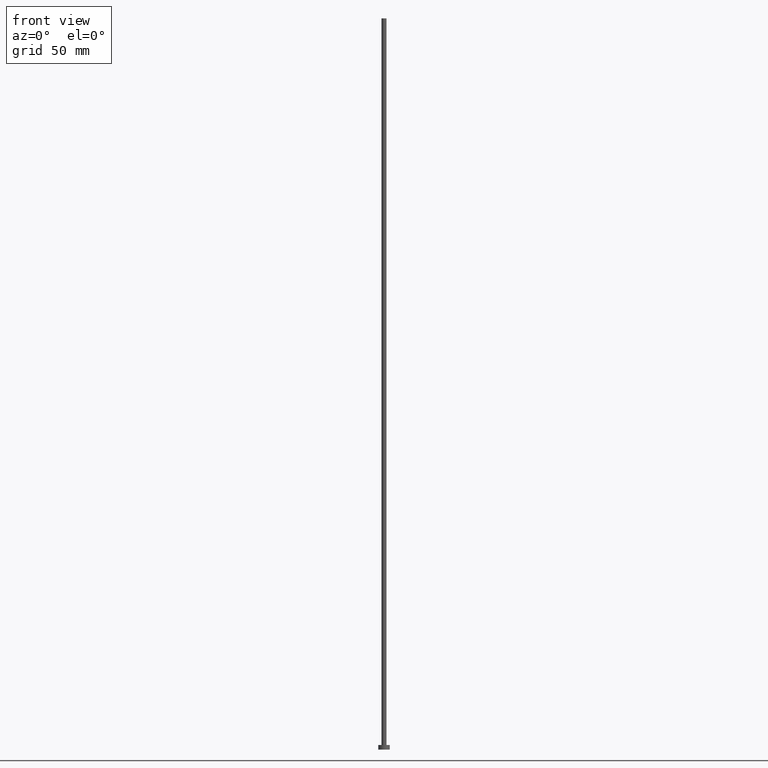
[diagram: clean part render]
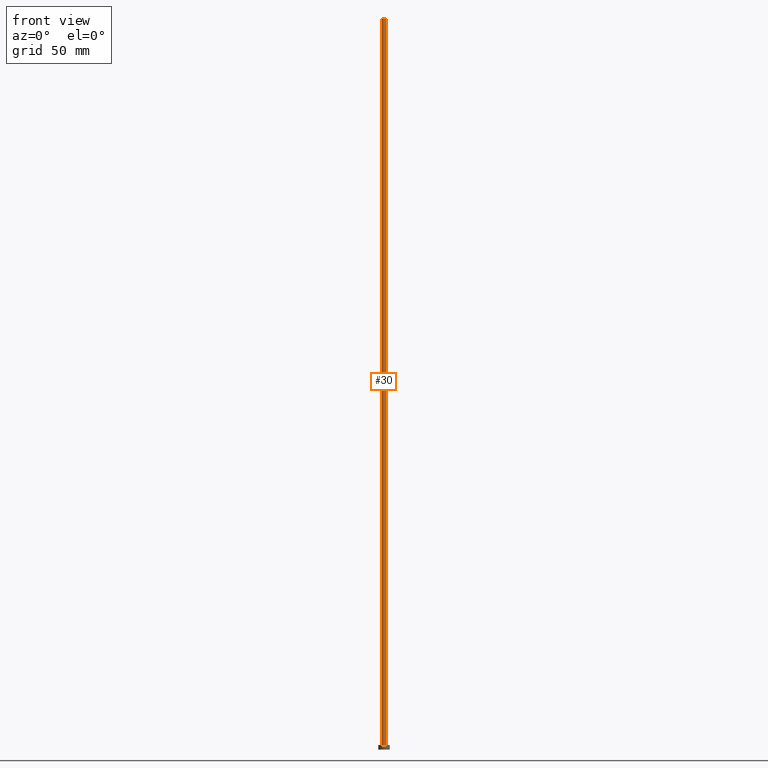
[diagram: same view with one face highlighted and labeled with its STEP entity id]
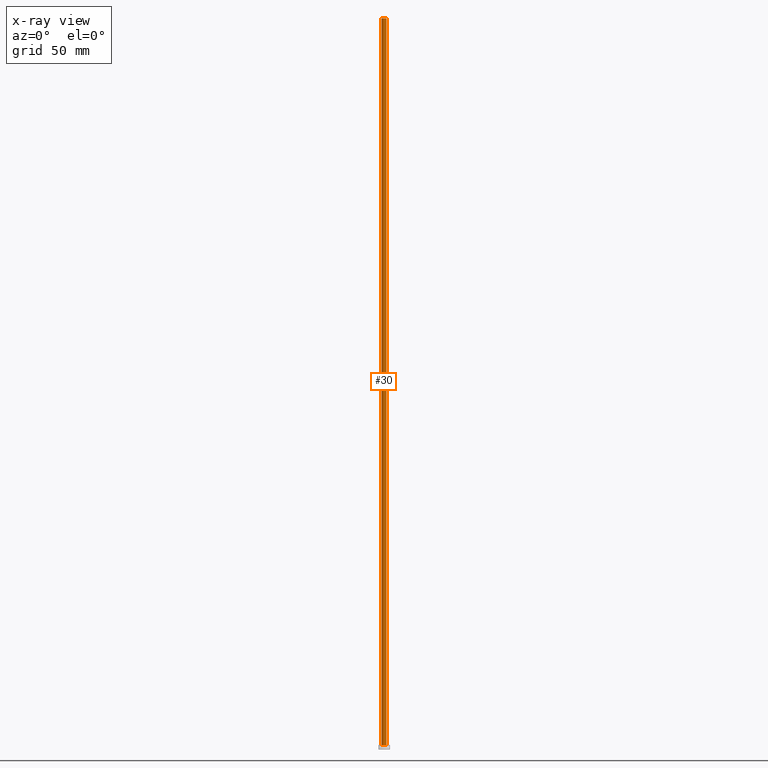
[diagram: x-ray of the same camera — body ghosted, the highlighted face saturated]
A machine part, front view. The second image highlights one B-rep face of the part: STEP entity #30.
The next image is the same camera in x-ray: the body ghosted, the highlighted face saturated — about 0% of this face is hidden behind the body in this view.
In plain terms, the highlighted cylindrical surface (edge-blend (fillet) strip) has radius 1.1 mm, axis along (-0, -0, -1).
Its self-contained STEP definition (entity closure, byte-faithful):
#8 = CARTESIAN_POINT ( 'NONE',  ( 1.100000000000000089, 1.347111479062088503E-16, 2.000000000000000000 ) ) ;
#14 = CARTESIAN_POINT ( 'NONE',  ( -1.100000000000000089, 0.000000000000000000, 2.000000000000000000 ) ) ;
#20 = CIRCLE ( 'NONE', #227, 1.100000000000000089 ) ;
#30 = ADVANCED_FACE ( 'NONE', ( #216 ), #126, .T. ) ;
#53 = EDGE_CURVE ( 'NONE', #119, #73, #78, .T. ) ;
#54 = DIRECTION ( 'NONE',  ( -1.000000000000000000, 0.000000000000000000, 0.000000000000000000 ) ) ;
#56 = DIRECTION ( 'NONE',  ( -0.000000000000000000, -0.000000000000000000, -1.000000000000000000 ) ) ;
#58 = AXIS2_PLACEMENT_3D ( 'NONE', #174, #97, #154 ) ;
#73 = VERTEX_POINT ( 'NONE', #8 ) ;
#78 = LINE ( 'NONE', #156, #188 ) ;
#83 = ORIENTED_EDGE ( 'NONE', *, *, #53, .F. ) ;
#86 = CARTESIAN_POINT ( 'NONE',  ( -1.100000000000000089, 0.000000000000000000, 315.0000000000000000 ) ) ;
#93 = VECTOR ( 'NONE', #121, 1000.000000000000000 ) ;
#97 = DIRECTION ( 'NONE',  ( 0.000000000000000000, 0.000000000000000000, 1.000000000000000000 ) ) ;
#105 = DIRECTION ( 'NONE',  ( 0.000000000000000000, 0.000000000000000000, 1.000000000000000000 ) ) ;
#106 = EDGE_CURVE ( 'NONE', #159, #73, #20, .T. ) ;
#107 = LINE ( 'NONE', #189, #93 ) ;
#111 = AXIS2_PLACEMENT_3D ( 'NONE', #219, #235, #54 ) ;
#119 = VERTEX_POINT ( 'NONE', #245 ) ;
#121 = DIRECTION ( 'NONE',  ( -0.000000000000000000, -0.000000000000000000, -1.000000000000000000 ) ) ;
#126 = CYLINDRICAL_SURFACE ( 'NONE', #111, 1.100000000000000089 ) ;
#128 = VERTEX_POINT ( 'NONE', #86 ) ;
#134 = ORIENTED_EDGE ( 'NONE', *, *, #106, .T. ) ;
#142 = DIRECTION ( 'NONE',  ( 1.000000000000000000, 0.000000000000000000, 0.000000000000000000 ) ) ;
#145 = EDGE_CURVE ( 'NONE', #128, #159, #107, .T. ) ;
#148 = EDGE_LOOP ( 'NONE', ( #83, #155, #191, #134 ) ) ;
#154 = DIRECTION ( 'NONE',  ( 1.000000000000000000, 0.000000000000000000, 0.000000000000000000 ) ) ;
#155 = ORIENTED_EDGE ( 'NONE', *, *, #206, .F. ) ;
#156 = CARTESIAN_POINT ( 'NONE',  ( 1.100000000000000089, 1.347111479062088503E-16, 315.0000000000000000 ) ) ;
#159 = VERTEX_POINT ( 'NONE', #14 ) ;
#173 = CARTESIAN_POINT ( 'NONE',  ( 0.000000000000000000, 0.000000000000000000, 2.000000000000000000 ) ) ;
#174 = CARTESIAN_POINT ( 'NONE',  ( 0.000000000000000000, 0.000000000000000000, 315.0000000000000000 ) ) ;
#178 = CIRCLE ( 'NONE', #58, 1.100000000000000089 ) ;
#188 = VECTOR ( 'NONE', #56, 1000.000000000000000 ) ;
#189 = CARTESIAN_POINT ( 'NONE',  ( -1.100000000000000089, 0.000000000000000000, 315.0000000000000000 ) ) ;
#191 = ORIENTED_EDGE ( 'NONE', *, *, #145, .T. ) ;
#206 = EDGE_CURVE ( 'NONE', #128, #119, #178, .T. ) ;
#216 = FACE_OUTER_BOUND ( 'NONE', #148, .T. ) ;
#219 = CARTESIAN_POINT ( 'NONE',  ( 0.000000000000000000, 0.000000000000000000, 315.0000000000000000 ) ) ;
#227 = AXIS2_PLACEMENT_3D ( 'NONE', #173, #105, #142 ) ;
#235 = DIRECTION ( 'NONE',  ( -0.000000000000000000, -0.000000000000000000, -1.000000000000000000 ) ) ;
#245 = CARTESIAN_POINT ( 'NONE',  ( 1.100000000000000089, 1.347111479062088503E-16, 315.0000000000000000 ) ) ;